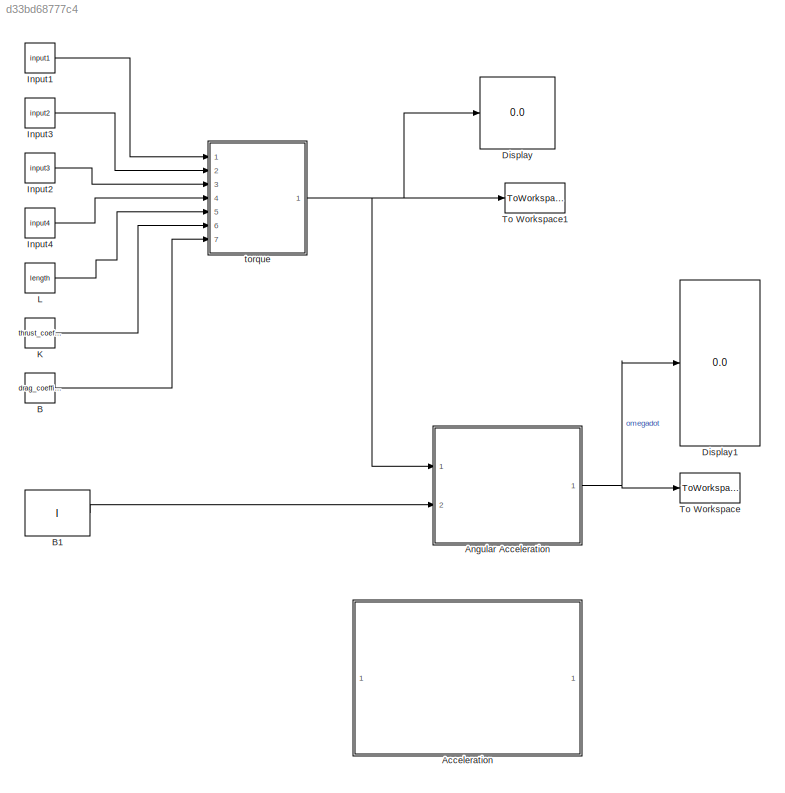
MODEL slx_d33bd68777c4
KIND model
CONFIG AbsTol = auto
CONFIG EnableMultiTasking = off
CONFIG FixedStep = auto
CONFIG MaxStep = auto
CONFIG MinStep = auto
CONFIG RelTol = 1e-3
CONFIG SampleTimeConstraint = Unconstrained
CONFIG Solver = VariableStepAuto
CONFIG SolverName = VariableStepAuto
CONFIG StartTime = 0.0
CONFIG StopTime = 0
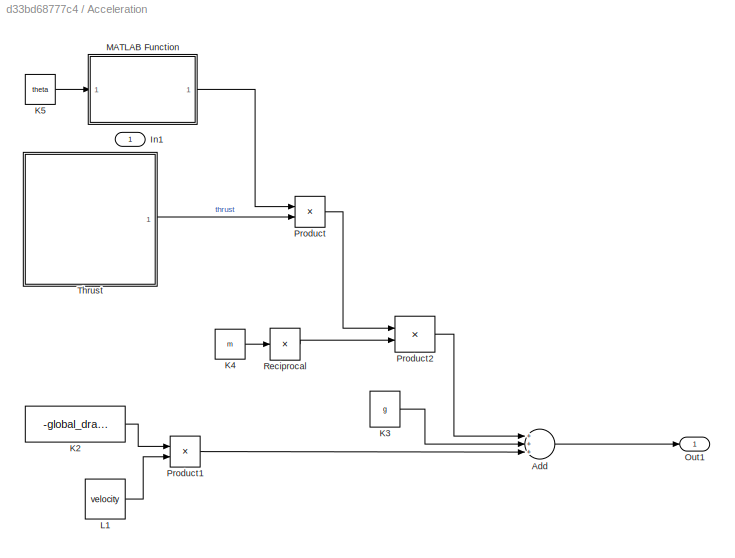
BLOCK [SubSystem] Acceleration
  Ports = [1, 1]
  RequestExecContextInheritance = off
BLOCK [Sum] Acceleration/Add
  InputSameDT = off
  Inputs = +++
  OutDataTypeStr = Inherit: Inherit via internal rule
  Ports = [3, 1]
  SaturateOnIntegerOverflow = off
BLOCK [Inport] Acceleration/In1
  IconDisplay = Port number
BLOCK [Constant] Acceleration/K2
  Value = -global_drag_coef
BLOCK [Constant] Acceleration/K3
  Value = g
BLOCK [Constant] Acceleration/K4
  Value = m
BLOCK [Constant] Acceleration/K5
  Value = theta
BLOCK [Constant] Acceleration/L1
  Value = velocity
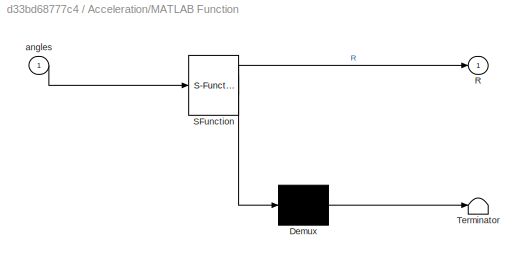
BLOCK [SubSystem] Acceleration/MATLAB Function
  ErrorFcn = Stateflow.Translate.translate
  PermitHierarchicalResolution = ExplicitOnly
  Ports = [1, 1]
  RequestExecContextInheritance = off
  SFBlockType = MATLAB Function
  TreatAsAtomicUnit = on
BLOCK [Demux] Acceleration/MATLAB Function/ Demux 
  Outputs = 1
  Ports = [1, 1]
BLOCK [S-Function] Acceleration/MATLAB Function/ SFunction 
  EnableBusSupport = on
  FunctionName = sf_sfun
  PortCounts = [1 2]
  Ports = [1, 2]
  SFcnIsStateOwnerBlock = off
  SFunctionDeploymentMode = off
  Tag = Stateflow S-Function drone_model 2
BLOCK [Terminator] Acceleration/MATLAB Function/ Terminator 
BLOCK [Outport] Acceleration/MATLAB Function/R
  IconDisplay = Port number
BLOCK [Inport] Acceleration/MATLAB Function/angles
  IconDisplay = Port number
BLOCK [Outport] Acceleration/Out1
  IconDisplay = Port number
BLOCK [Product] Acceleration/Product
  InputSameDT = off
  Multiplication = Matrix(*)
  OutDataTypeStr = Inherit: Inherit via internal rule
  Ports = [2, 1]
  RndMeth = Floor
  SaturateOnIntegerOverflow = off
BLOCK [Product] Acceleration/Product1
  InputSameDT = off
  OutDataTypeStr = Inherit: Inherit via internal rule
  Ports = [2, 1]
  RndMeth = Floor
  SaturateOnIntegerOverflow = off
BLOCK [Product] Acceleration/Product2
  InputSameDT = off
  OutDataTypeStr = Inherit: Inherit via internal rule
  Ports = [2, 1]
  RndMeth = Floor
  SaturateOnIntegerOverflow = off
BLOCK [Product] Acceleration/Reciprocal
  InputSameDT = off
  Inputs = /
  OutDataTypeStr = Inherit: Inherit via internal rule
  Ports = [1, 1]
  RndMeth = Floor
  SaturateOnIntegerOverflow = off
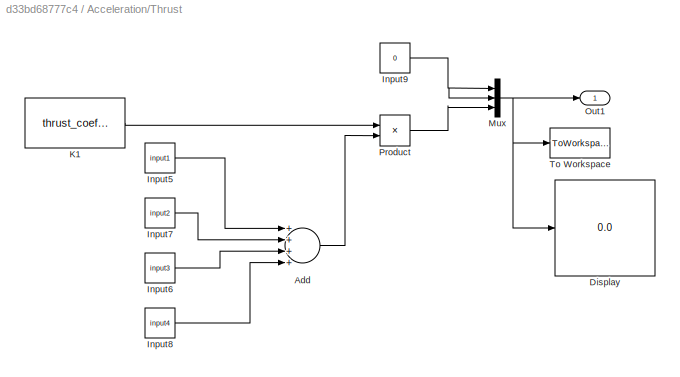
BLOCK [SubSystem] Acceleration/Thrust
  Ports = [0, 1]
  RequestExecContextInheritance = off
BLOCK [Sum] Acceleration/Thrust/Add
  InputSameDT = off
  Inputs = ++++
  OutDataTypeStr = Inherit: Inherit via internal rule
  Ports = [4, 1]
  SaturateOnIntegerOverflow = off
BLOCK [Display] Acceleration/Thrust/Display
  Decimation = 1
  Ports = [1]
BLOCK [Constant] Acceleration/Thrust/Input5
  Value = input1
BLOCK [Constant] Acceleration/Thrust/Input6
  Value = input3
BLOCK [Constant] Acceleration/Thrust/Input7
  Value = input2
BLOCK [Constant] Acceleration/Thrust/Input8
  Value = input4
BLOCK [Constant] Acceleration/Thrust/Input9
  Value = 0
BLOCK [Constant] Acceleration/Thrust/K1
  Value = thrust_coefficient
BLOCK [Mux] Acceleration/Thrust/Mux
  DisplayOption = bar
  Inputs = 3
  Ports = [3, 1]
BLOCK [Outport] Acceleration/Thrust/Out1
  IconDisplay = Port number
BLOCK [Product] Acceleration/Thrust/Product
  InputSameDT = off
  OutDataTypeStr = Inherit: Inherit via internal rule
  Ports = [2, 1]
  RndMeth = Floor
  SaturateOnIntegerOverflow = off
BLOCK [ToWorkspace] Acceleration/Thrust/To Workspace
  FixptAsFi = on
  MaxDataPoints = inf
  Ports = [1]
  SampleTime = -1
  SaveFormat = Timeseries
  VariableName = simout
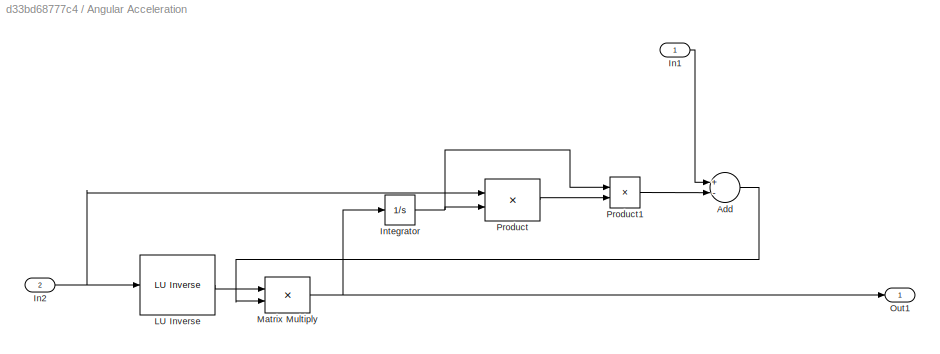
BLOCK [SubSystem] Angular Acceleration
  Ports = [2, 1]
  RequestExecContextInheritance = off
BLOCK [Reference] Angular Acceleration/ LU Inverse  REF=dspinverses/ LU Inverse
  Ports = [1, 1]
  SourceBlock = dspinverses/ LU Inverse
  SourceProductBaseCode = DS
  SourceProductName = DSP System Toolbox
  SourceType = LU Inverse
BLOCK [Sum] Angular Acceleration/Add
  InputSameDT = off
  Inputs = +-
  OutDataTypeStr = Inherit: Inherit via internal rule
  Ports = [2, 1]
  SaturateOnIntegerOverflow = off
BLOCK [Inport] Angular Acceleration/In1
  IconDisplay = Port number
BLOCK [Inport] Angular Acceleration/In2
  IconDisplay = Port number
  Port = 2
BLOCK [Integrator] Angular Acceleration/Integrator
  InitialCondition = 0.00000001
  Ports = [1, 1]
BLOCK [Product] Angular Acceleration/Matrix Multiply
  InputSameDT = off
  Multiplication = Matrix(*)
  OutDataTypeStr = Inherit: Inherit via internal rule
  Ports = [2, 1]
  RndMeth = Floor
  SaturateOnIntegerOverflow = off
BLOCK [Outport] Angular Acceleration/Out1
  IconDisplay = Port number
BLOCK [Product] Angular Acceleration/Product
  InputSameDT = off
  Multiplication = Matrix(*)
  OutDataTypeStr = Inherit: Inherit via internal rule
  Ports = [2, 1]
  RndMeth = Floor
  SaturateOnIntegerOverflow = off
BLOCK [Product] Angular Acceleration/Product1
  InputSameDT = off
  OutDataTypeStr = Inherit: Inherit via internal rule
  Ports = [2, 1]
  RndMeth = Floor
  SaturateOnIntegerOverflow = off
BLOCK [Constant] B
  Value = drag_coefficient
BLOCK [Constant] B1
  Value = I
  VectorParams1D = off
BLOCK [Display] Display
  Decimation = 1
  Ports = [1]
BLOCK [Display] Display1
  Decimation = 1
  Ports = [1]
BLOCK [Constant] Input1
  Value = input1
BLOCK [Constant] Input2
  Value = input3
BLOCK [Constant] Input3
  Value = input2
BLOCK [Constant] Input4
  Value = input4
BLOCK [Constant] K
  Value = thrust_coefficient
BLOCK [Constant] L
  Value = length
BLOCK [ToWorkspace] To Workspace
  FixptAsFi = on
  MaxDataPoints = inf
  Ports = [1]
  SampleTime = -1
  Save2DSignal = 2-D array (concatenate along first dimension)
  VariableName = angular_accel
BLOCK [ToWorkspace] To Workspace1
  FixptAsFi = on
  MaxDataPoints = inf
  Ports = [1]
  SampleTime = -1
  Save2DSignal = 2-D array (concatenate along first dimension)
  VariableName = torque
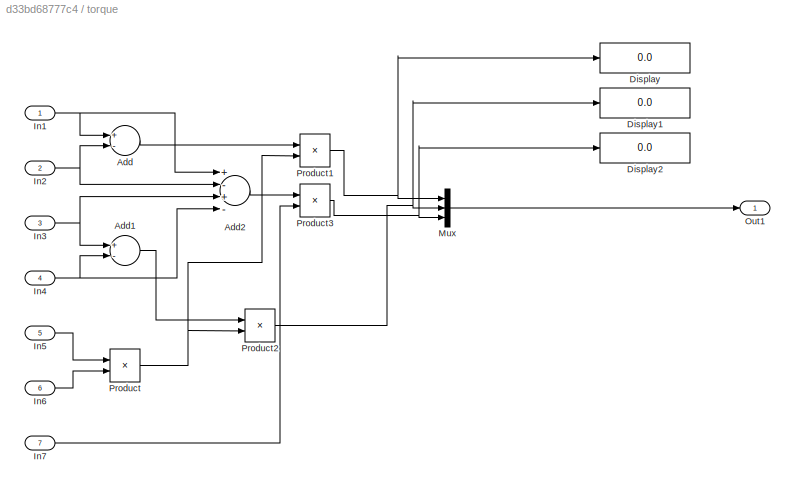
BLOCK [SubSystem] torque
  Ports = [7, 1]
  RequestExecContextInheritance = off
BLOCK [Sum] torque/Add
  InputSameDT = off
  Inputs = +-
  OutDataTypeStr = Inherit: Inherit via internal rule
  Ports = [2, 1]
  SaturateOnIntegerOverflow = off
BLOCK [Sum] torque/Add1
  InputSameDT = off
  Inputs = +-
  OutDataTypeStr = Inherit: Inherit via internal rule
  Ports = [2, 1]
  SaturateOnIntegerOverflow = off
BLOCK [Sum] torque/Add2
  InputSameDT = off
  Inputs = +-+-
  OutDataTypeStr = Inherit: Inherit via internal rule
  Ports = [4, 1]
  SaturateOnIntegerOverflow = off
BLOCK [Display] torque/Display
  Decimation = 1
  Ports = [1]
BLOCK [Display] torque/Display1
  Decimation = 1
  Ports = [1]
BLOCK [Display] torque/Display2
  Decimation = 1
  Ports = [1]
BLOCK [Inport] torque/In1
  IconDisplay = Port number
BLOCK [Inport] torque/In2
  IconDisplay = Port number
  Port = 2
BLOCK [Inport] torque/In3
  IconDisplay = Port number
  Port = 3
BLOCK [Inport] torque/In4
  IconDisplay = Port number
  Port = 4
BLOCK [Inport] torque/In5
  IconDisplay = Port number
  Port = 5
BLOCK [Inport] torque/In6
  IconDisplay = Port number
  Port = 6
BLOCK [Inport] torque/In7
  IconDisplay = Port number
  Port = 7
BLOCK [Mux] torque/Mux
  DisplayOption = bar
  Inputs = 3
  Ports = [3, 1]
BLOCK [Outport] torque/Out1
  IconDisplay = Port number
BLOCK [Product] torque/Product
  InputSameDT = off
  OutDataTypeStr = Inherit: Inherit via internal rule
  Ports = [2, 1]
  RndMeth = Floor
  SaturateOnIntegerOverflow = off
BLOCK [Product] torque/Product1
  InputSameDT = off
  OutDataTypeStr = Inherit: Inherit via internal rule
  Ports = [2, 1]
  RndMeth = Floor
  SaturateOnIntegerOverflow = off
BLOCK [Product] torque/Product2
  InputSameDT = off
  OutDataTypeStr = Inherit: Inherit via internal rule
  Ports = [2, 1]
  RndMeth = Floor
  SaturateOnIntegerOverflow = off
BLOCK [Product] torque/Product3
  InputSameDT = off
  OutDataTypeStr = Inherit: Inherit via internal rule
  Ports = [2, 1]
  RndMeth = Floor
  SaturateOnIntegerOverflow = off
LINE Acceleration/Add:1 -> Acceleration/Out1:1
LINE Acceleration/K2:1 -> Acceleration/Product1:1
LINE Acceleration/K3:1 -> Acceleration/Add:2
LINE Acceleration/K4:1 -> Acceleration/Reciprocal:1
LINE Acceleration/K5:1 -> Acceleration/MATLAB Function:1
LINE Acceleration/L1:1 -> Acceleration/Product1:2
LINE Acceleration/MATLAB Function:1 -> Acceleration/Product:1
LINE Acceleration/Product1:1 -> Acceleration/Add:3
LINE Acceleration/Product2:1 -> Acceleration/Add:1
LINE Acceleration/Product:1 -> Acceleration/Product2:1
LINE Acceleration/Reciprocal:1 -> Acceleration/Product2:2
LINE Acceleration/Thrust/Add:1 -> Acceleration/Thrust/Product:2
LINE Acceleration/Thrust/Input5:1 -> Acceleration/Thrust/Add:1
LINE Acceleration/Thrust/Input6:1 -> Acceleration/Thrust/Add:3
LINE Acceleration/Thrust/Input7:1 -> Acceleration/Thrust/Add:2
LINE Acceleration/Thrust/Input8:1 -> Acceleration/Thrust/Add:4
NET Acceleration/Thrust/Input9:1 -> Acceleration/Thrust/Mux:1, Acceleration/Thrust/Mux:2
LINE Acceleration/Thrust/K1:1 -> Acceleration/Thrust/Product:1
NET Acceleration/Thrust/Mux:1 -> Acceleration/Thrust/Display:1, Acceleration/Thrust/Out1:1, Acceleration/Thrust/To Workspace:1
LINE Acceleration/Thrust/Product:1 -> Acceleration/Thrust/Mux:3
LINE Acceleration/Thrust:1 -> Acceleration/Product:2
LINE Angular Acceleration/ LU Inverse:1 -> Angular Acceleration/Matrix Multiply:1
LINE Angular Acceleration/Add:1 -> Angular Acceleration/Matrix Multiply:2
LINE Angular Acceleration/In1:1 -> Angular Acceleration/Add:1
NET Angular Acceleration/In2:1 -> Angular Acceleration/ LU Inverse:1, Angular Acceleration/Product:1
NET Angular Acceleration/Integrator:1 -> Angular Acceleration/Product1:1, Angular Acceleration/Product:2
NET Angular Acceleration/Matrix Multiply:1 -> Angular Acceleration/Integrator:1, Angular Acceleration/Out1:1
LINE Angular Acceleration/Product1:1 -> Angular Acceleration/Add:2
LINE Angular Acceleration/Product:1 -> Angular Acceleration/Product1:2
NET Angular Acceleration:1 -> Display1:1, To Workspace:1
LINE B1:1 -> Angular Acceleration:2
LINE B:1 -> torque:7
LINE Input1:1 -> torque:1
LINE Input2:1 -> torque:3
LINE Input3:1 -> torque:2
LINE Input4:1 -> torque:4
LINE K:1 -> torque:6
LINE L:1 -> torque:5
LINE torque/Add1:1 -> torque/Product2:1
LINE torque/Add2:1 -> torque/Product3:1
LINE torque/Add:1 -> torque/Product1:1
NET torque/In1:1 -> torque/Add2:1, torque/Add:1
NET torque/In2:1 -> torque/Add2:2, torque/Add:2
NET torque/In3:1 -> torque/Add1:1, torque/Add2:3
NET torque/In4:1 -> torque/Add1:2, torque/Add2:4
LINE torque/In5:1 -> torque/Product:1
LINE torque/In6:1 -> torque/Product:2
LINE torque/In7:1 -> torque/Product3:2
LINE torque/Mux:1 -> torque/Out1:1
NET torque/Product1:1 -> torque/Display:1, torque/Mux:1
NET torque/Product2:1 -> torque/Display1:1, torque/Mux:2
NET torque/Product3:1 -> torque/Display2:1, torque/Mux:3
NET torque/Product:1 -> torque/Product1:2, torque/Product2:2
NET torque:1 -> Angular Acceleration:1, Display:1, To Workspace1:1
note: NET lines group one-source signal fan-out (src -> all destinations, sorted); 1:1 wires keep LINE
CHART Acceleration/MATLAB Function states=1 transitions=1
  STATE_LABEL 'eML_blk_kernel()'
  STATE_LABEL 'SCRIPT:\nfunction R = Accel_RotationMatrix(angles)\ncos_phi = cos(angles(1));\ncos_omega = cos(angles(2));\ncos_psi = cos(angles(3));\n\nsin_phi = sin(angles(1));\nsin_omega = sin(angles(2));\nsin_psi = sin(angles(3));\n\nR = [cos_phi*cos_psi-cos_omega*sin_phi*sin_psi -cos_psi*sin_phi-cos_phi*cos_omega*sin_psi sin_omega*sin_psi;\n     cos_omega*cos_psi*sin_psi+cos_phi*sin_psi cos_phi*cos_omega*cos_psi-sin_ph...<+84ch>'
